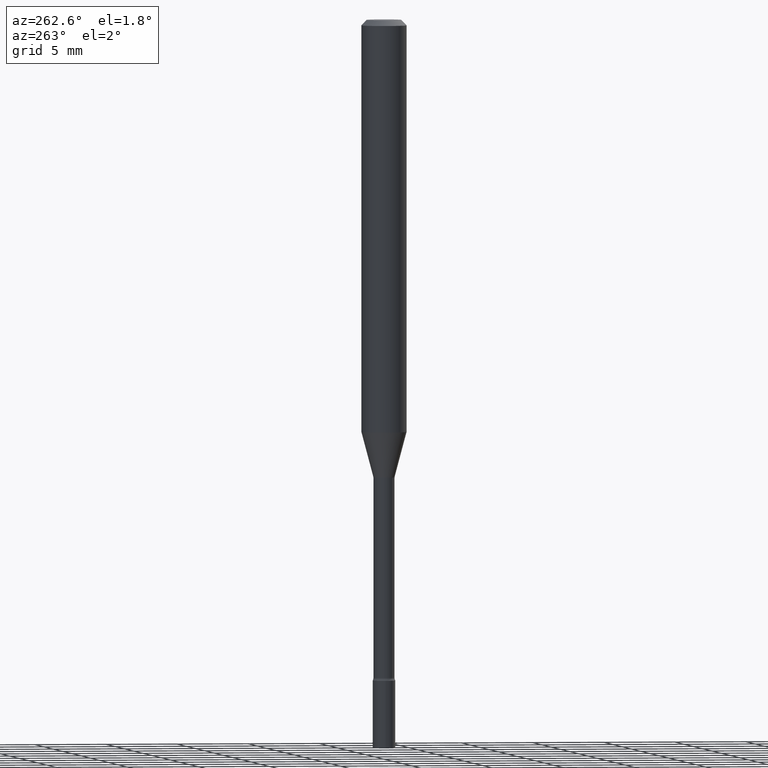
[diagram: clean part render]
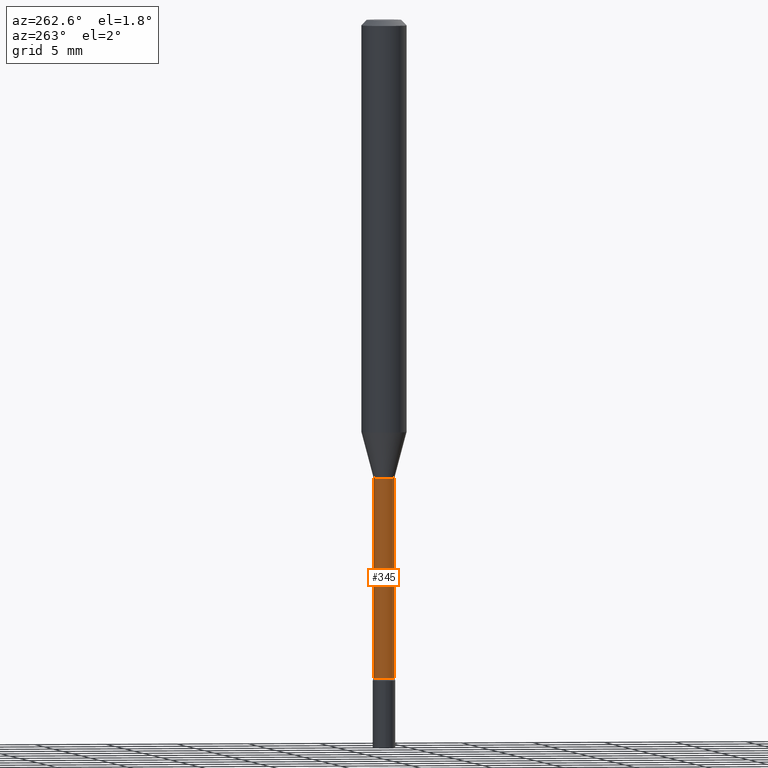
[diagram: same view with one face highlighted and labeled with its STEP entity id]
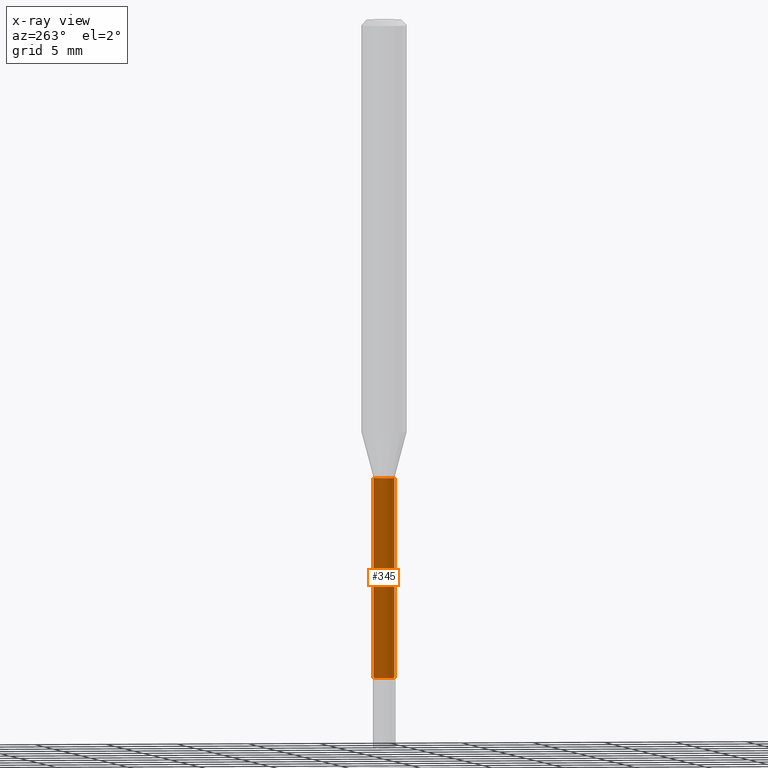
[diagram: x-ray of the same camera — body ghosted, the highlighted face saturated]
A machine part, auxiliary view. The second image highlights one B-rep face of the part: STEP entity #345.
The next image is the same camera in x-ray: the body ghosted, the highlighted face saturated — about 0% of this face is hidden behind the body in this view.
In plain terms, the highlighted cylindrical surface (edge-blend (fillet) strip) has radius 0.7404 mm, axis along (-0, 0, 1).
Its self-contained STEP definition (entity closure, byte-faithful):
#15 = CARTESIAN_POINT ( 'NONE',  ( 3.076348275793326515E-29, -4.392180925298853782E-15, -1.257974787463810973 ) ) ;
#38 = VERTEX_POINT ( 'NONE', #189 ) ;
#87 = DIRECTION ( 'NONE',  ( -2.445476893853745621E-29, 3.491469756841376044E-15, 1.000000000000000000 ) ) ;
#93 = CIRCLE ( 'NONE', #286, 0.02914999999999999883 ) ;
#98 = DIRECTION ( 'NONE',  ( -6.982962677686266711E-15, -1.000000000000000000, 0.000000000000000000 ) ) ;
#102 = VERTEX_POINT ( 'NONE', #439 ) ;
#120 = DIRECTION ( 'NONE',  ( -2.445476893853745901E-29, 3.491469756841376044E-15, 1.000000000000000000 ) ) ;
#123 = EDGE_LOOP ( 'NONE', ( #293, #247, #205, #306 ) ) ;
#128 = EDGE_CURVE ( 'NONE', #422, #38, #157, .T. ) ;
#150 = CYLINDRICAL_SURFACE ( 'NONE', #190, 0.02915000000000001618 ) ;
#152 = CIRCLE ( 'NONE', #218, 0.02915000000000003699 ) ;
#157 = LINE ( 'NONE', #238, #481 ) ;
#165 = VERTEX_POINT ( 'NONE', #482 ) ;
#179 = CARTESIAN_POINT ( 'NONE',  ( 4.418447364519045951E-29, -6.308330037460723492E-15, -1.806783525791634926 ) ) ;
#189 = CARTESIAN_POINT ( 'NONE',  ( 2.071232074741134953E-16, 0.02914999999999560651, -1.257974787463810973 ) ) ;
#190 = AXIS2_PLACEMENT_3D ( 'NONE', #353, #382, #313 ) ;
#195 = EDGE_CURVE ( 'NONE', #38, #102, #93, .T. ) ;
#205 = ORIENTED_EDGE ( 'NONE', *, *, #320, .T. ) ;
#218 = AXIS2_PLACEMENT_3D ( 'NONE', #179, #431, #98 ) ;
#238 = CARTESIAN_POINT ( 'NONE',  ( 2.071232074740692945E-16, 0.02915000000000001618, -1.017763434119261568E-16 ) ) ;
#247 = ORIENTED_EDGE ( 'NONE', *, *, #402, .T. ) ;
#251 = DIRECTION ( 'NONE',  ( -6.982962677686265922E-15, -1.000000000000000000, 0.000000000000000000 ) ) ;
#286 = AXIS2_PLACEMENT_3D ( 'NONE', #15, #87, #251 ) ;
#293 = ORIENTED_EDGE ( 'NONE', *, *, #128, .F. ) ;
#306 = ORIENTED_EDGE ( 'NONE', *, *, #195, .F. ) ;
#307 = CARTESIAN_POINT ( 'NONE',  ( -2.035533620545547610E-16, -0.02915000000000001618, 1.017763434119261568E-16 ) ) ;
#313 = DIRECTION ( 'NONE',  ( -6.982962677686265922E-15, -1.000000000000000000, 3.491469756841375650E-15 ) ) ;
#320 = EDGE_CURVE ( 'NONE', #165, #102, #487, .T. ) ;
#345 = ADVANCED_FACE ( 'NONE', ( #387 ), #150, .T. ) ;
#353 = CARTESIAN_POINT ( 'NONE',  ( 0.000000000000000000, 0.000000000000000000, 0.000000000000000000 ) ) ;
#378 = VECTOR ( 'NONE', #466, 39.37007874015748143 ) ;
#382 = DIRECTION ( 'NONE',  ( -2.445476893853745621E-29, 3.491469756841376044E-15, 1.000000000000000000 ) ) ;
#387 = FACE_OUTER_BOUND ( 'NONE', #123, .T. ) ;
#402 = EDGE_CURVE ( 'NONE', #422, #165, #152, .T. ) ;
#422 = VERTEX_POINT ( 'NONE', #432 ) ;
#431 = DIRECTION ( 'NONE',  ( -2.445476893853745621E-29, 3.491469756841376044E-15, 1.000000000000000000 ) ) ;
#432 = CARTESIAN_POINT ( 'NONE',  ( 2.136957277798945610E-16, 0.02914999999999372954, -1.806783525791634926 ) ) ;
#439 = CARTESIAN_POINT ( 'NONE',  ( -2.035533620545238968E-16, -0.02915000000000439115, -1.257974787463810973 ) ) ;
#466 = DIRECTION ( 'NONE',  ( -2.445476893853745901E-29, 3.491469756841376044E-15, 1.000000000000000000 ) ) ;
#481 = VECTOR ( 'NONE', #120, 39.37007874015748143 ) ;
#482 = CARTESIAN_POINT ( 'NONE',  ( -2.035533620545107327E-16, -0.02915000000000634445, -1.806783525791634926 ) ) ;
#487 = LINE ( 'NONE', #307, #378 ) ;